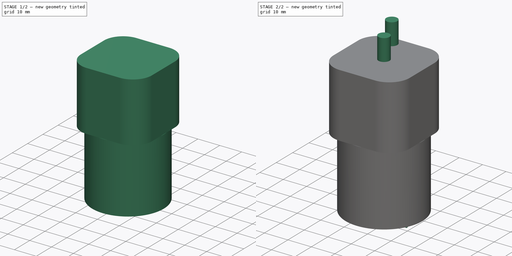
[diagram: build sequence overview — one tinted view per stage of 2, left to right]
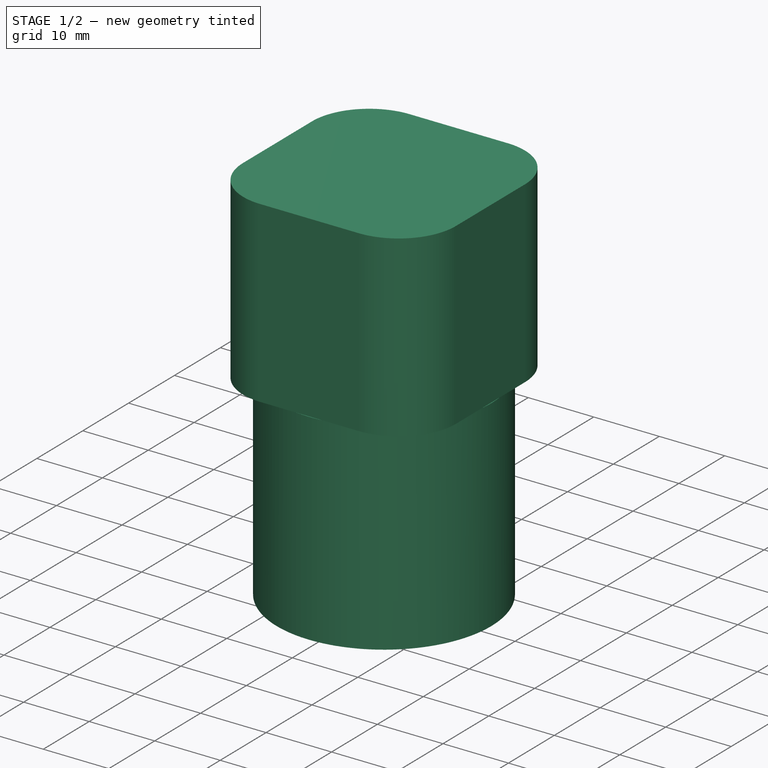
[diagram: stage 1 of 2 — iso view after this stage's code; geometry added in this stage tinted green]
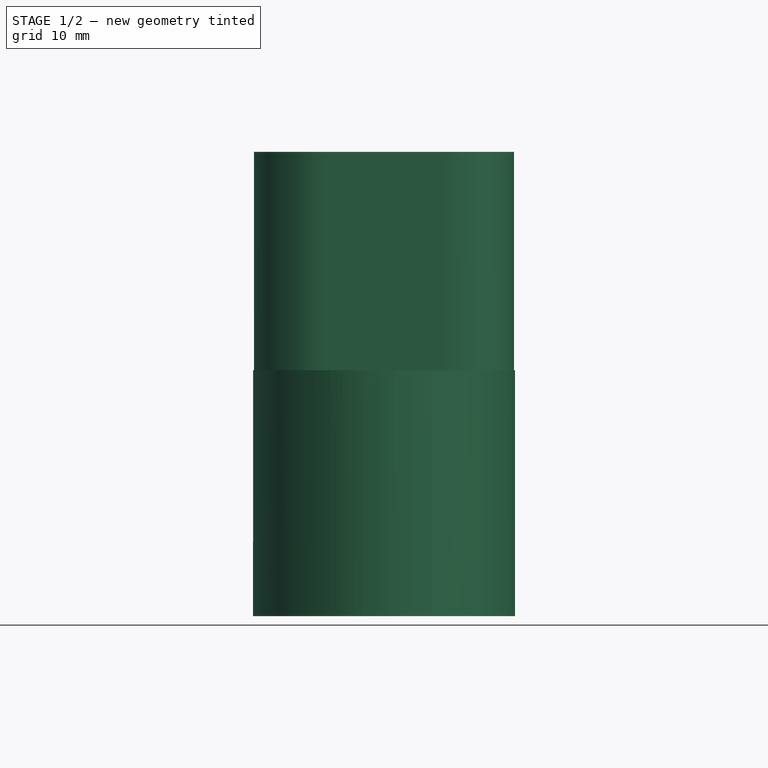
[diagram: stage 1 of 2 — front view after this stage's code; geometry added in this stage tinted green]
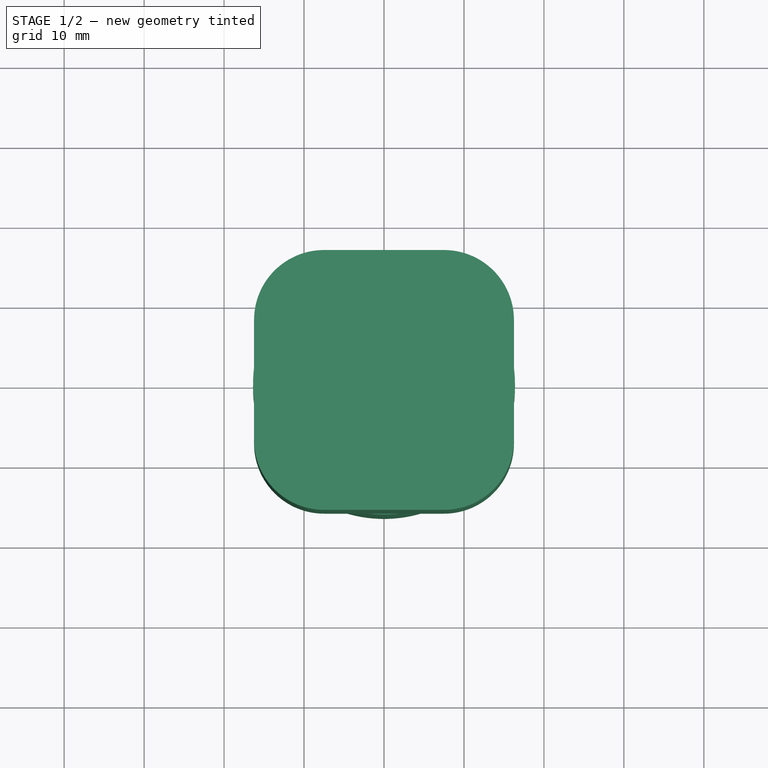
[diagram: stage 1 of 2 — top view after this stage's code; geometry added in this stage tinted green]
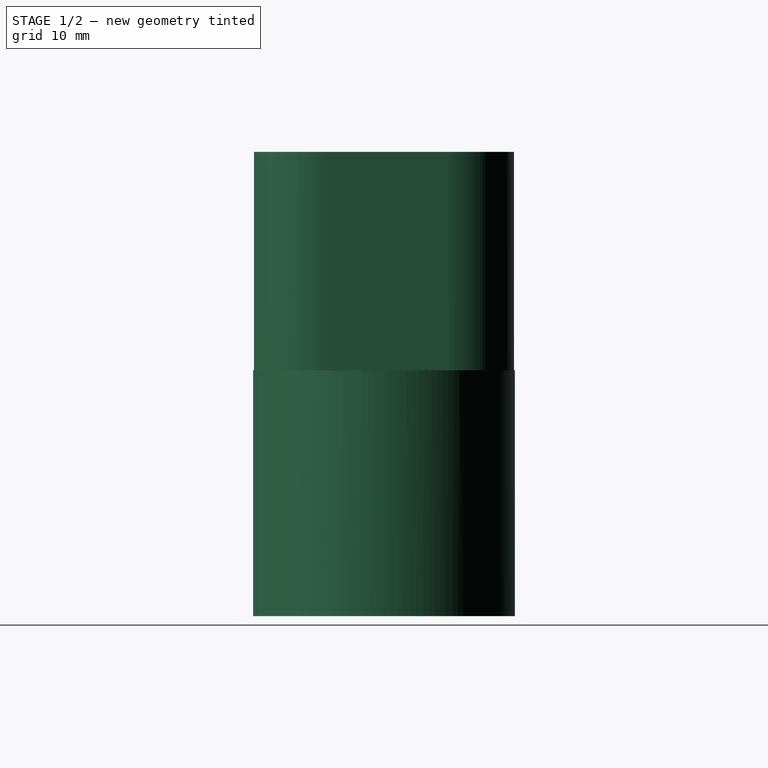
[diagram: stage 1 of 2 — right view after this stage's code; geometry added in this stage tinted green]
FCSTD DOCUMENT  (FreeCAD 0.19R)
Label: OTS-0003-00_vacuum-pump
License: All rights reserved
LicenseURL: http://en.wikipedia.org/wiki/All_rights_reserved
objects: Sketcher::SketchObject×4, PartDesign::Pad×4, PartDesign::Body×1
note: 13 computed .brp shape members not serialized (recipe doc carries the construction recipe); baked Part::Feature solids carry a one-line shape summary decoded from their .brp

FEATURE [Sketcher::SketchObject] Sketch
  FullyConstrained = true
  MapMode = 5
  Support = -> [XY_Plane]
  sketch-geometry (8):
    g0: LineSegment StartX=-16.25 StartY=7.50002 StartZ=0 EndX=-16.25 EndY=-7.5 EndZ=0
    g1: LineSegment StartX=-7.5 StartY=-16.25 StartZ=0 EndX=7.50002 EndY=-16.25 EndZ=0
    g2: LineSegment StartX=16.25 StartY=-7.50002 StartZ=0 EndX=16.25 EndY=7.5 EndZ=0
    g3: LineSegment StartX=7.5 StartY=16.25 StartZ=0 EndX=-7.50002 EndY=16.25 EndZ=0
    g4: ArcOfCircle CenterX=-7.5 CenterY=7.5 CenterZ=0 NormalX=0 NormalY=0 NormalZ=1 AngleXU=0 Radius=8.75 StartAngle=1.5708 EndAngle=3.14159
    g5: ArcOfCircle CenterX=-7.5 CenterY=-7.5 CenterZ=0 NormalX=0 NormalY=0 NormalZ=1 AngleXU=0 Radius=8.75 StartAngle=3.14159 EndAngle=4.71239
    g6: ArcOfCircle CenterX=7.50002 CenterY=-7.50002 CenterZ=0 NormalX=0 NormalY=0 NormalZ=1 AngleXU=0 Radius=8.74998 StartAngle=4.71239 EndAngle=6.28319
    g7: ArcOfCircle CenterX=7.5 CenterY=7.5 CenterZ=0 NormalX=0 NormalY=0 NormalZ=1 AngleXU=0 Radius=8.75 StartAngle=6.28319 EndAngle=7.85398
  constraints (26):
    c: Vertical(g0)
    c: Horizontal(g1)
    c: Vertical(g2)
    c: Horizontal(g3)
    c: Coincident(g4,g3)
    c: Coincident(g5,g0)
    c: Coincident(g6,g1)
    c: Coincident(g7,g2)
    c: Tangent(g4,g3)
    c: Tangent(g4,g0)
    c: Tangent(g5,g0)
    c: Tangent(g1,g5)
    c: Tangent(g6,g1)
    c: Tangent(g6,g2)
    c: Tangent(g2,g7)
    c: Tangent(g7,g3)
    c: Coincident(g4,g0)
    c: Coincident(g5,g1)
    c: Coincident(g6,g2)
    c: Coincident(g7,g3)
    c: Equal(g0,g3)
    c: Equal(g0,g1)
    c: Symmetric(g4,g5,g-1)
    c: Symmetric(g4,g7,g-2)
    c: DistanceX(g0,g2) = 32.5
    c: Radius(g4) = 8.75
FEATURE [PartDesign::Pad] Pad
  Direction = (1,1,1)
  Length = 27.3
  Length2 = 100
  Profile = -> Sketch
  Type = 0
FEATURE [Sketcher::SketchObject] Sketch001
  FullyConstrained = true
  MapMode = 5
  Support = -> [XY_Plane]
  sketch-geometry (1):
    g0: Circle CenterX=0 CenterY=0 CenterZ=0 NormalX=0 NormalY=0 NormalZ=1 AngleXU=0 Radius=16.375
  constraints (2):
    c: Coincident(g0,g-1)
    c: Diameter(g0) = 32.75
FEATURE [PartDesign::Pad] Pad001
  BaseFeature = -> Pad
  Direction = (1,1,1)
  Length = 30.75
  Length2 = 100
  Profile = -> Sketch001
  Reversed = true
  Type = 0
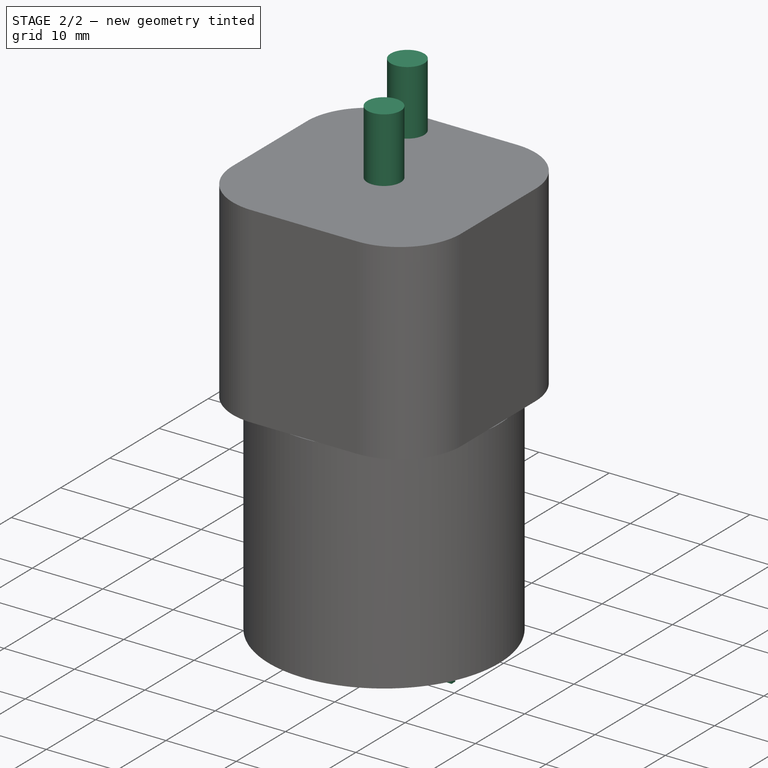
[diagram: stage 2 of 2 — iso view after this stage's code; geometry added in this stage tinted green]
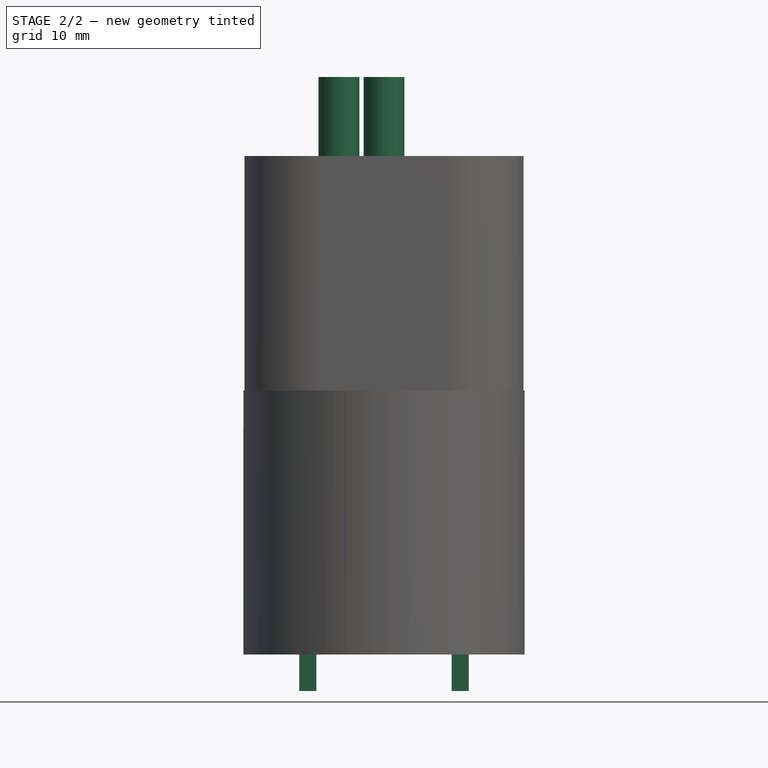
[diagram: stage 2 of 2 — front view after this stage's code; geometry added in this stage tinted green]
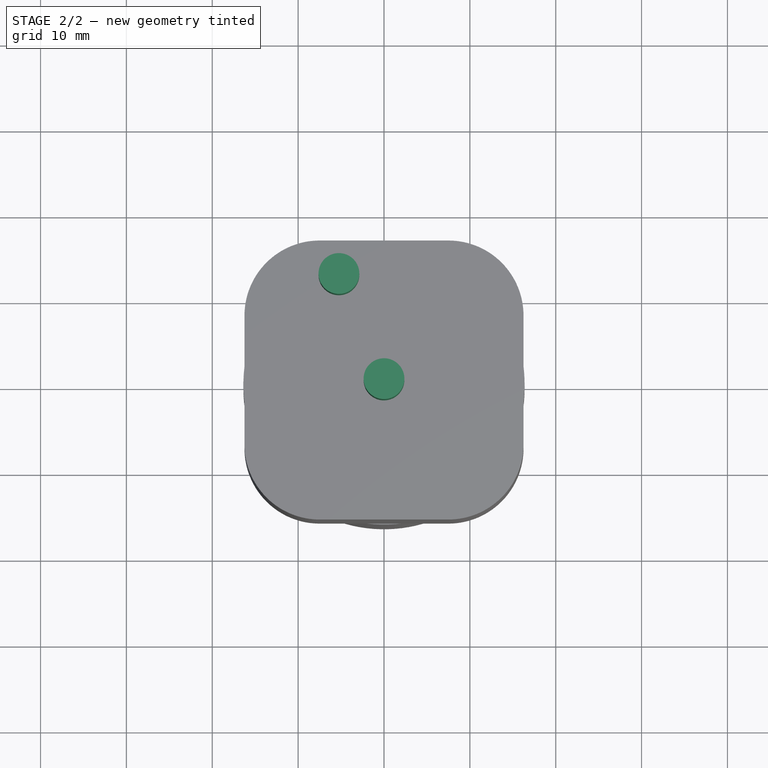
[diagram: stage 2 of 2 — top view after this stage's code; geometry added in this stage tinted green]
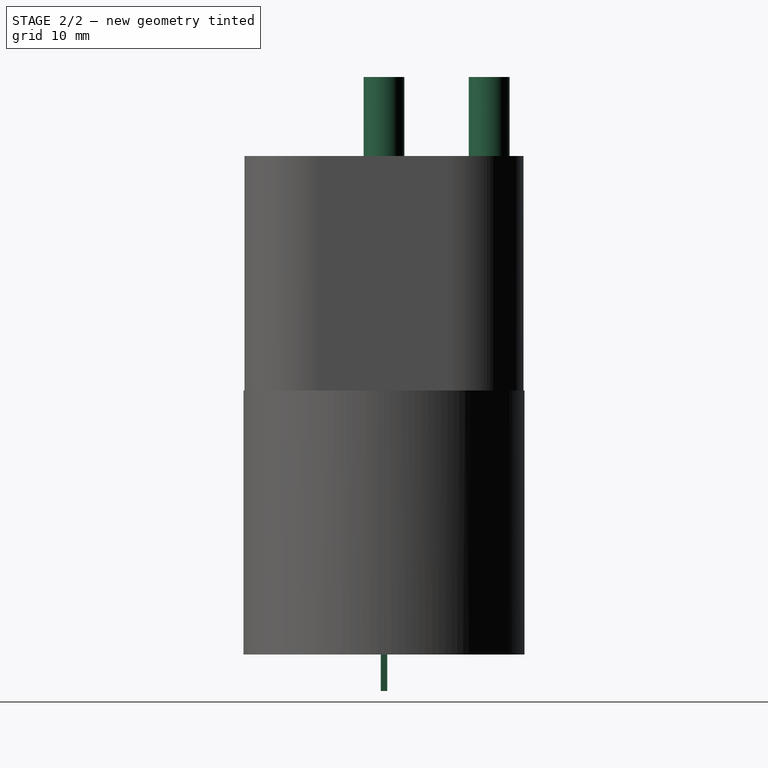
[diagram: stage 2 of 2 — right view after this stage's code; geometry added in this stage tinted green]
FEATURE [Sketcher::SketchObject] Sketch002
  FullyConstrained = true
  MapMode = 5
  Support = -> [XY_Plane]
  sketch-geometry (2):
    g0: Circle CenterX=0 CenterY=0 CenterZ=0 NormalX=0 NormalY=0 NormalZ=1 AngleXU=0 Radius=2.375
    g1: Circle CenterX=-5.25 CenterY=12.25 CenterZ=0 NormalX=0 NormalY=0 NormalZ=1 AngleXU=0 Radius=2.375
  constraints (5):
    c: Coincident(g0,g-1)
    c: Diameter(g0) = 4.75
    c: Diameter(g1) = 4.75
    c: DistanceY(g0,g1) = 12.25
    c: DistanceX(g1,g0) = 5.25
FEATURE [PartDesign::Pad] Pad002
  BaseFeature = -> Pad001
  Direction = (1,1,1)
  Length = 36.5
  Length2 = 100
  Profile = -> Sketch002
  Type = 0
FEATURE [Sketcher::SketchObject] Sketch004
  FullyConstrained = false
  MapMode = 5
  Support = -> [XY_Plane]
  sketch-geometry (10):
    g0: LineSegment StartX=-9.875 StartY=0.375 StartZ=0 EndX=-7.875 EndY=0.375 EndZ=0
    g1: LineSegment StartX=-7.875 StartY=0.375 StartZ=0 EndX=-7.875 EndY=-0.375 EndZ=0
    g2: LineSegment StartX=-7.875 StartY=-0.375 StartZ=0 EndX=-9.875 EndY=-0.375 EndZ=0
    g3: LineSegment StartX=-9.875 StartY=-0.375 StartZ=0 EndX=-9.875 EndY=0.375 EndZ=0
    g4: LineSegment StartX=7.875 StartY=0.375 StartZ=0 EndX=9.875 EndY=0.375 EndZ=0
    g5: LineSegment StartX=9.875 StartY=0.375 StartZ=0 EndX=9.875 EndY=-0.375 EndZ=0
    g6: LineSegment StartX=9.875 StartY=-0.375 StartZ=0 EndX=7.875 EndY=-0.375 EndZ=0
    g7: LineSegment StartX=7.875 StartY=-0.375 StartZ=0 EndX=7.875 EndY=0.375 EndZ=0
    g8: LineSegment StartX=-8.875 StartY=0.375 StartZ=0 EndX=-8.875 EndY=-0.375 EndZ=0
    g9: LineSegment StartX=8.875 StartY=0.375 StartZ=0 EndX=8.875 EndY=-0.375 EndZ=0
  constraints (28):
    c: Coincident(g0,g1)
    c: Coincident(g1,g2)
    c: Coincident(g2,g3)
    c: Coincident(g3,g0)
    c: Horizontal(g0)
    c: Horizontal(g2)
    c: Vertical(g3)
    c: Coincident(g4,g5)
    c: Coincident(g5,g6)
    c: Coincident(g6,g7)
    c: Coincident(g7,g4)
    c: Horizontal(g4)
    c: Horizontal(g6)
    c: Vertical(g5)
    c: Vertical(g7)
    c: PointOnObject(g8,g0)
    c: PointOnObject(g8,g2)
    c: PointOnObject(g9,g4)
    c: PointOnObject(g9,g6)
    c: DistanceX(g8,g9) = 17.75
    c: Symmetric(g8,g9,g-2)
    c: Symmetric(g0,g0,g8)
    c: Symmetric(g4,g4,g9)
    c: DistanceX(g0,g0) = 2
    c: DistanceX(g4,g4) = 2
    c: DistanceY(g1,g1) = 0.75
    c: DistanceY(g7,g7) = 0.75
    c: Symmetric(g0,g1,g-1)
FEATURE [PartDesign::Pad] Pad004
  BaseFeature = -> Pad002
  Direction = (1,1,1)
  Length = 35
  Length2 = 100
  Profile = -> Sketch004
  Reversed = true
  Type = 0
FEATURE [PartDesign::Body] Body
  Group = -> [Sketch,Pad,Sketch001,Pad001,Sketch002,Pad002,Sketch004,Pad004]
  Origin = -> Origin
  Tip = -> Pad004
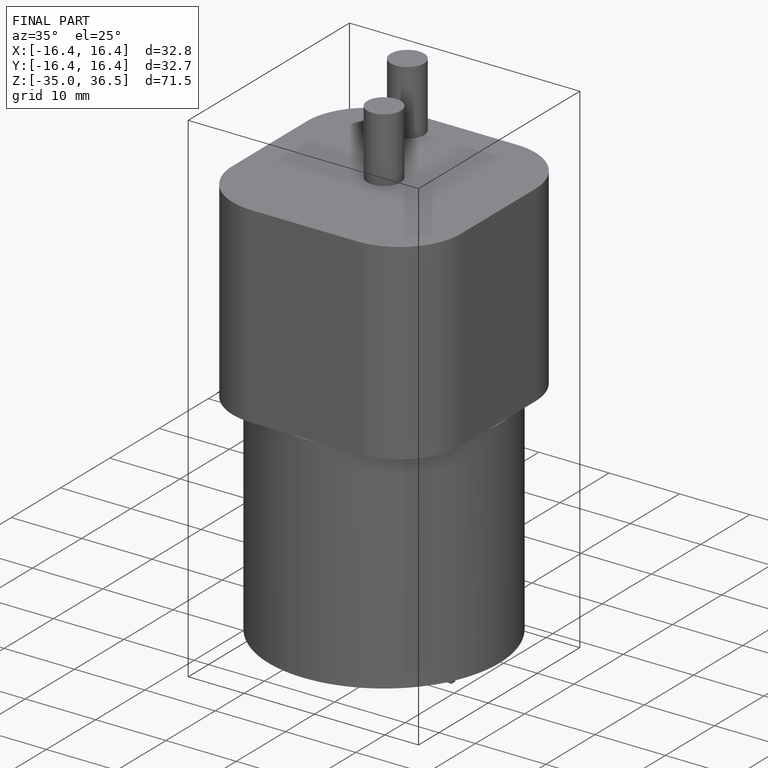
[diagram: finished part — iso view with bounding-box wireframe]
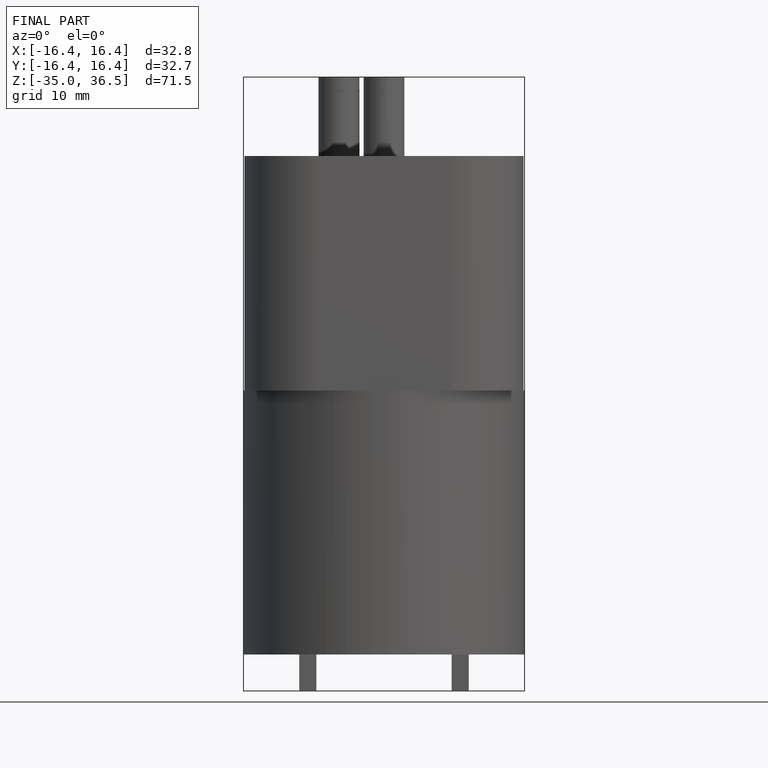
[diagram: finished part — front view with bounding-box wireframe]
